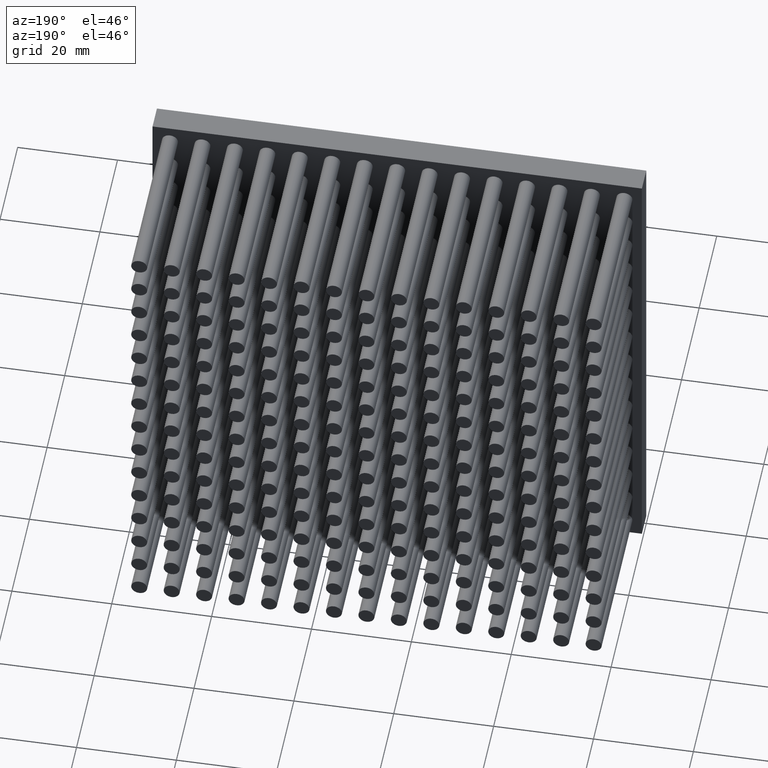
[diagram: clean part render]
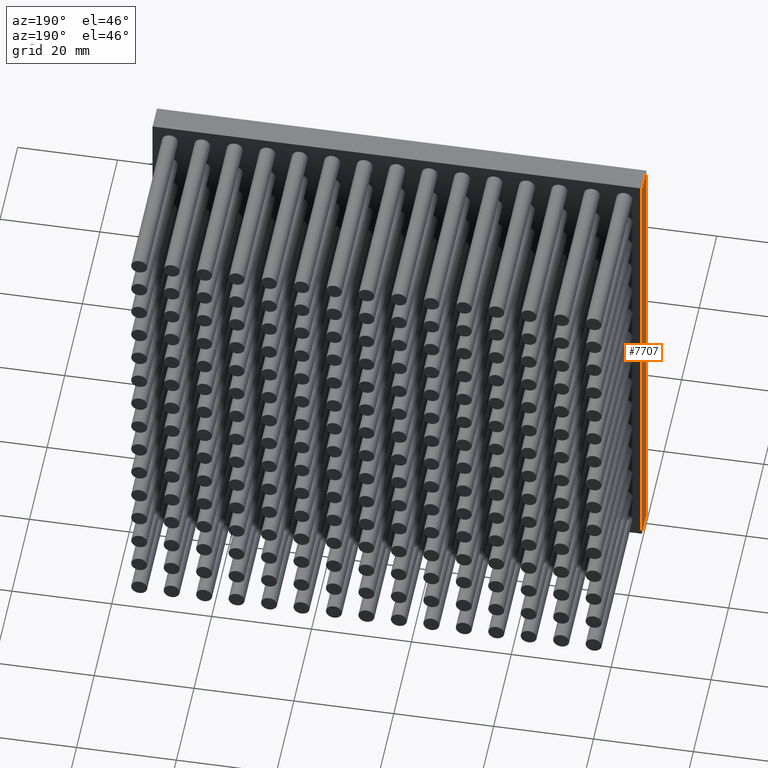
[diagram: same view with one face highlighted and labeled with its STEP entity id]
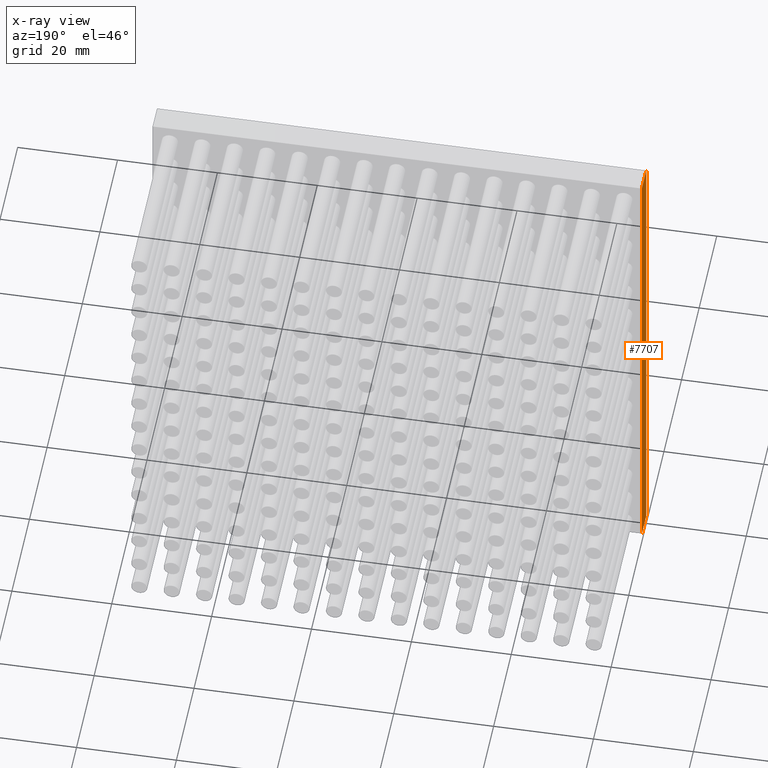
[diagram: x-ray of the same camera — body ghosted, the highlighted face saturated]
A machine part, auxiliary view. The second image highlights one B-rep face of the part: STEP entity #7707.
The next image is the same camera in x-ray: the body ghosted, the highlighted face saturated — about 0% of this face is hidden behind the body in this view.
In plain terms, the highlighted planar face has unit normal (1, 0, -0).
Its self-contained STEP definition (entity closure, byte-faithful):
#1011 = LINE ( 'NONE', #3944, #17654 ) ;
#1033 = AXIS2_PLACEMENT_3D ( 'NONE', #13497, #12020, #4066 ) ;
#1067 = VERTEX_POINT ( 'NONE', #10269 ) ;
#1143 = DIRECTION ( 'NONE',  ( 1.224646799147353207E-16, 0.0000000000000000000, 1.000000000000000000 ) ) ;
#1674 = ORIENTED_EDGE ( 'NONE', *, *, #8554, .T. ) ;
#2295 = DIRECTION ( 'NONE',  ( 1.224646799147353207E-16, 0.0000000000000000000, 1.000000000000000000 ) ) ;
#3944 = CARTESIAN_POINT ( 'NONE',  ( 0.0000000000000000000, 5.000000000000000000, 0.0000000000000000000 ) ) ;
#4066 = DIRECTION ( 'NONE',  ( -1.224646799147353207E-16, 0.0000000000000000000, -1.000000000000000000 ) ) ;
#4573 = ORIENTED_EDGE ( 'NONE', *, *, #9361, .T. ) ;
#4951 = ORIENTED_EDGE ( 'NONE', *, *, #8588, .F. ) ;
#6415 = DIRECTION ( 'NONE',  ( -0.0000000000000000000, -1.000000000000000000, -0.0000000000000000000 ) ) ;
#6464 = LINE ( 'NONE', #13679, #12100 ) ;
#6483 = FACE_OUTER_BOUND ( 'NONE', #9617, .T. ) ;
#7707 = ADVANCED_FACE ( 'NONE', ( #6483 ), #15424, .F. ) ;
#7871 = CARTESIAN_POINT ( 'NONE',  ( 1.200153863164406030E-14, 5.000000000000000000, 98.00000000000000000 ) ) ;
#8420 = CARTESIAN_POINT ( 'NONE',  ( 0.0000000000000000000, 0.0000000000000000000, 0.0000000000000000000 ) ) ;
#8554 = EDGE_CURVE ( 'NONE', #14373, #11012, #1011, .T. ) ;
#8588 = EDGE_CURVE ( 'NONE', #14373, #1067, #9576, .T. ) ;
#9277 = DIRECTION ( 'NONE',  ( -0.0000000000000000000, -1.000000000000000000, -0.0000000000000000000 ) ) ;
#9361 = EDGE_CURVE ( 'NONE', #11012, #10131, #6464, .T. ) ;
#9576 = LINE ( 'NONE', #15269, #11755 ) ;
#9617 = EDGE_LOOP ( 'NONE', ( #4573, #15888, #4951, #1674 ) ) ;
#10131 = VERTEX_POINT ( 'NONE', #17372 ) ;
#10182 = EDGE_CURVE ( 'NONE', #1067, #10131, #13699, .T. ) ;
#10269 = CARTESIAN_POINT ( 'NONE',  ( 1.200153863164406030E-14, 5.000000000000000000, 98.00000000000000000 ) ) ;
#11012 = VERTEX_POINT ( 'NONE', #8420 ) ;
#11755 = VECTOR ( 'NONE', #2295, 1000.000000000000000 ) ;
#12020 = DIRECTION ( 'NONE',  ( 1.000000000000000000, 0.0000000000000000000, -1.224646799147353207E-16 ) ) ;
#12100 = VECTOR ( 'NONE', #1143, 1000.000000000000000 ) ;
#13497 = CARTESIAN_POINT ( 'NONE',  ( 0.0000000000000000000, 5.000000000000000000, 0.0000000000000000000 ) ) ;
#13679 = CARTESIAN_POINT ( 'NONE',  ( 0.0000000000000000000, 0.0000000000000000000, 0.0000000000000000000 ) ) ;
#13699 = LINE ( 'NONE', #7871, #14146 ) ;
#13729 = CARTESIAN_POINT ( 'NONE',  ( 0.0000000000000000000, 5.000000000000000000, 0.0000000000000000000 ) ) ;
#14146 = VECTOR ( 'NONE', #9277, 1000.000000000000000 ) ;
#14373 = VERTEX_POINT ( 'NONE', #13729 ) ;
#15269 = CARTESIAN_POINT ( 'NONE',  ( 0.0000000000000000000, 5.000000000000000000, 0.0000000000000000000 ) ) ;
#15424 = PLANE ( 'NONE',  #1033 ) ;
#15888 = ORIENTED_EDGE ( 'NONE', *, *, #10182, .F. ) ;
#17372 = CARTESIAN_POINT ( 'NONE',  ( 1.200153863164406030E-14, 0.0000000000000000000, 98.00000000000000000 ) ) ;
#17654 = VECTOR ( 'NONE', #6415, 1000.000000000000000 ) ;